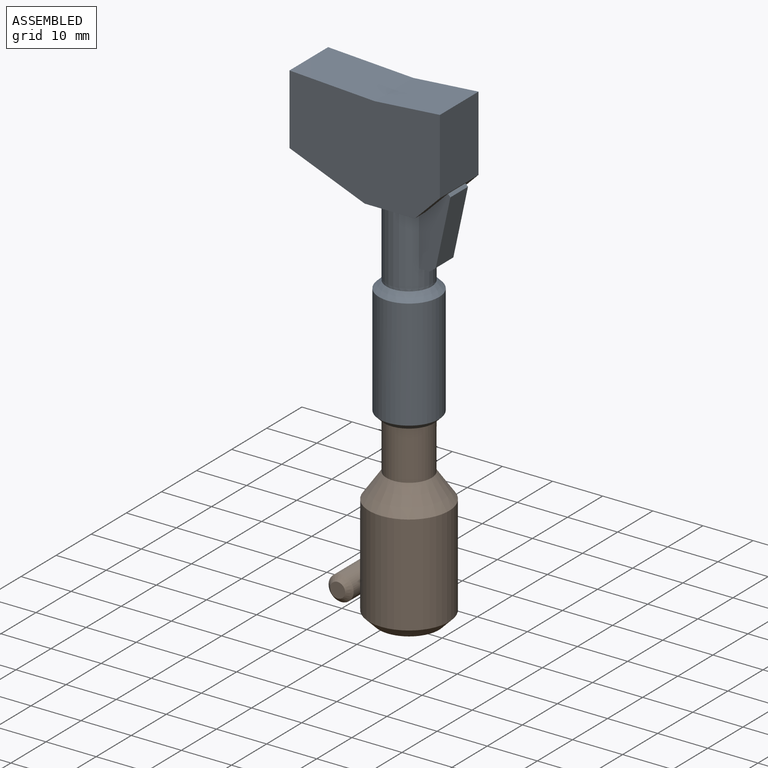
[diagram: assembled view]
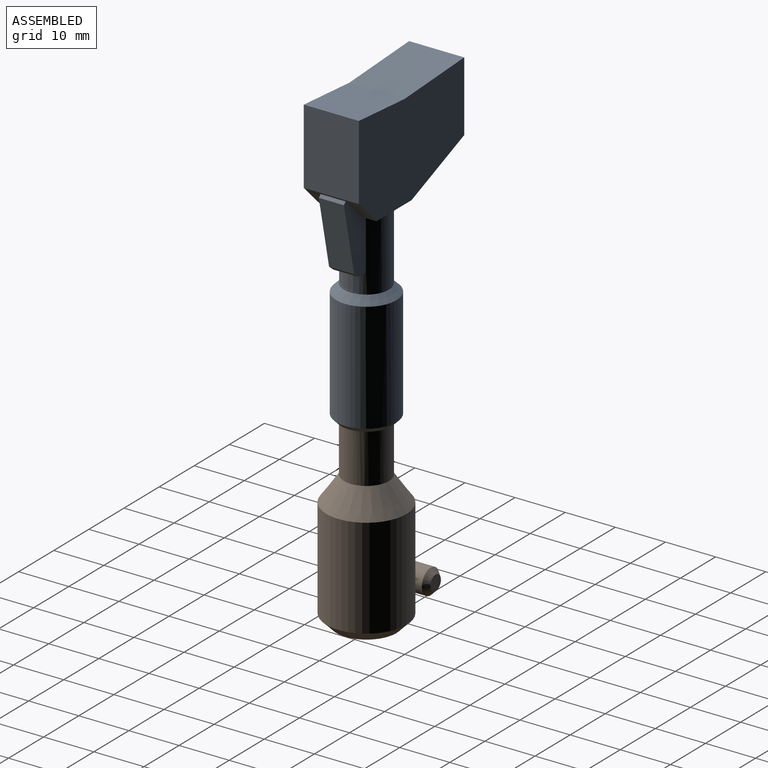
[diagram: assembled view, second angle]
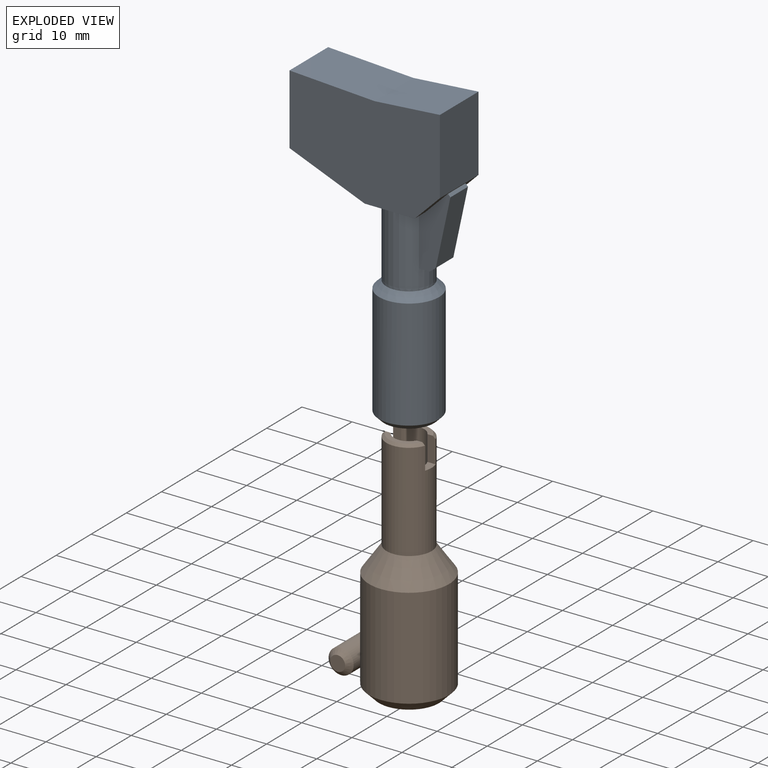
[diagram: exploded view]
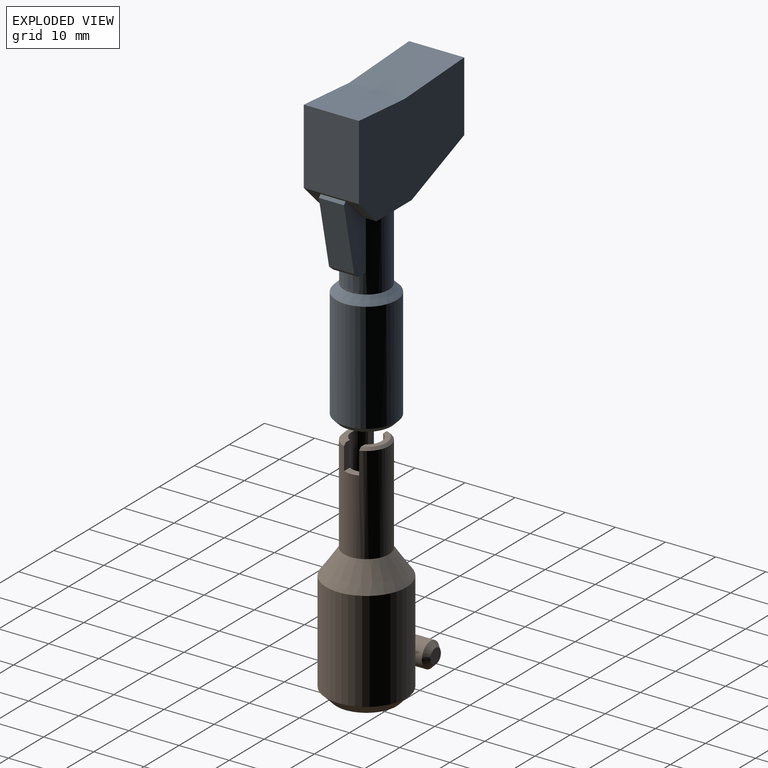
[diagram: exploded view, second angle]
ASSEMBLY  parts=2 mates=4
PART A: 28 faces, bbox 30x12x59 mm
  f0: plane 15x6.26mm, normal (0,-1,0), area 54.8mm2, adj f1,f2,f3,f20,f25,f26,f27
  f1: plane 5x2.13mm, normal (0,0,-1), area 8.1mm2, adj f0,f2,f7,f24,f27
  f2: extruded ~14.5x9mm, area 205.4mm2, adj f0,f1,f3,f7,f17
  f3: plane 11x10mm, normal (0,0,-1), area 42.7mm2, adj f0,f2,f4,f6,f7,f20,f21,f24
  f4: plane 30x20mm, normal (0,-1,0), area 527.5mm2, adj f3,f5,f19,f20,f21,f22,f23
  f5: plane 14x11mm, normal (-1,0,0), area 154mm2, adj f4,f6,f21,f23
  f6: plane 30x20mm, normal (0,1,0), area 527.5mm2, adj f3,f5,f19,f20,f21,f22,f23
  f7: cylinder r=4.5mm len=14.5mm, axis (0,0,-1), area 148.8mm2, adj f1,f2,f3,f17,f24
  f8: plane 10x10mm, normal (0,0,-1), area 15mm2, adj f13,f16,f18
  f9: plane 15x8.48mm, normal (0,-1,0), area 127.2mm2, adj f12,f13,f15
  f10: plane 15x8.48mm, normal (0,1,0), area 127.2mm2, adj f13,f14,f15
  f11: cylinder r=6mm len=22mm, axis (0,0,-1), area 829.4mm2, adj f17,f18
  f12: plane 8.49x3mm, normal (0,0,-1), area 18.6mm2, adj f9,f13
  f13: cylinder r=4.5mm len=20mm, axis (0,0,-1), area 458.3mm2, adj f8,f9,f10,f12,f14,f15,f16
  f14: plane 8.48x3mm, normal (0,0,-1), area 18.6mm2, adj f10,f13
  f15: plane 9x3mm, normal (0,0,-1), area 26.5mm2, adj f9,f10,f13,f16
  f16: extruded ~5x3mm, area 15.3mm2, adj f8,f13,f15
  f17: cone r=4mm half-angle=45deg, axis (0,0,-1), area 70mm2, adj f2,f7,f11
  f18: cone r=6mm half-angle=45deg, axis (0,0,1), area 48.9mm2, adj f8,f11
  f19: plane 15x11mm, normal (1,0,0), area 165mm2, adj f4,f6,f20,f22
  f20: plane 11x5mm, normal (0.71,0,-0.71), area 46mm2, adj f0,f3,f4,f6,f19,f24,f26
  f21: plane 15x11mm, normal (-0.37,0,-0.93), area 177.7mm2, adj f3,f4,f5,f6
  f22: plane 13x11mm, normal (-0.08,0,1), area 143.4mm2, adj f4,f6,f19,f23
  f23: plane 17x11mm, normal (0.06,0,1), area 187.3mm2, adj f4,f5,f6,f22
  f24: plane 15x6.26mm, normal (0,1,0), area 54.8mm2, adj f1,f3,f7,f20,f25,f26,f27
  f25: plane 13.52x5mm, normal (0.98,0,-0.21), area 69.2mm2, adj f0,f24,f26,f27
  f26: plane 5x0.5mm, normal (0.71,0,0.71), area 3.5mm2, adj f0,f20,f24,f25
  f27: plane 5x1.21mm, normal (0.63,0,-0.78), area 7.8mm2, adj f0,f1,f24,f25
PART B: 23 faces, bbox 16x19.5x47 mm
  f0: plane 7.41x2.5mm, normal (0,0,1), area 7.9mm2, adj f9,f16,f19,f21
  f1: cylinder r=8mm len=20mm, axis (0,0,-1), area 967.3mm2, adj f2,f4,f10
  f2: cone r=6mm half-angle=45deg, axis (0,0,1), area 124.4mm2, adj f1,f3
  f3: plane 12x12mm, normal (0,0,-1), area 49.5mm2, adj f2,f7
  f4: cone r=8mm half-angle=35deg, axis (0,0,-1), area 239.7mm2, adj f1,f5
  f5: cylinder r=4.5mm len=19.5mm, axis (0,0,-1), area 523.7mm2, adj f4,f15,f16,f17,f18,f19,f20,f21
  f6: plane 7.41x2.5mm, normal (0,0,1), area 7.9mm2, adj f9,f15,f20,f22
  f7: cylinder r=4.5mm len=25mm, axis (0,0,-1), area 706.9mm2, adj f3,f8
  f8: plane 9x9mm, normal (0,0,-1), area 35.3mm2, adj f7,f9
  f9: cylinder r=3mm len=22mm, axis (0,0,1), area 383.3mm2, adj f0,f6,f8,f15,f16,f17,f18,f19
  f10: cylinder r=2.5mm len=13mm, axis (-1,0,0), area 161.8mm2, adj f1,f13,f14
  f11: plane 3x3mm, normal (1,0,0), area 7.1mm2, adj f13
  f12: plane 3x3mm, normal (-1,0,0), area 7.1mm2, adj f14
  f13: cone r=1.5mm half-angle=45deg, axis (-1,0,0), area 17.8mm2, adj f10,f11
  f14: cone r=2.5mm half-angle=45deg, axis (1,0,0), area 17.8mm2, adj f10,f12
  f15: plane 5.01x1.66mm, normal (1,0,0), area 8.1mm2, adj f5,f6,f9,f17,f22
  f16: plane 5.01x1.66mm, normal (-1,0,0), area 8.1mm2, adj f0,f5,f9,f17,f21
  f17: plane 3x1.9mm, normal (0,0,1), area 4.6mm2, adj f5,f9,f15,f16
  f18: plane 3x1.9mm, normal (0,0,1), area 4.6mm2, adj f5,f9,f19,f20
  f19: plane 5.01x1.66mm, normal (-1,0,0), area 8.1mm2, adj f0,f5,f9,f18,f21
  f20: plane 5.01x1.66mm, normal (1,0,0), area 8.1mm2, adj f5,f6,f9,f18,f22
  f21: cone r=4mm half-angle=45deg, axis (0,0,-1), area 7.3mm2, adj f0,f5,f16,f19
  f22: cone r=4mm half-angle=45deg, axis (0,0,-1), area 7.3mm2, adj f5,f6,f15,f20
PLACE A t=(-10.03,-3.64,39.71)mm
PLACE B rot(axis=(0,0,1),90deg) t=(-10.03,-3.64,2.71)mm
MATE fastened B.f1 <-> A.f11  axis (0,0,1) through (-10.03,-3.64,44.71)mm
MATE slider B.f1 <-> A.f7  axis (0,0,1) through (-10.03,-3.64,44.71)mm
MATE parallel A.f11 <-> B.f17  axis (0,0,-1) through (-10.03,-3.64,44.71)mm
MATE parallel B.f20 <-> A.f10  axis (0,1,0) through (-13.44,-5.14,47.17)mm
